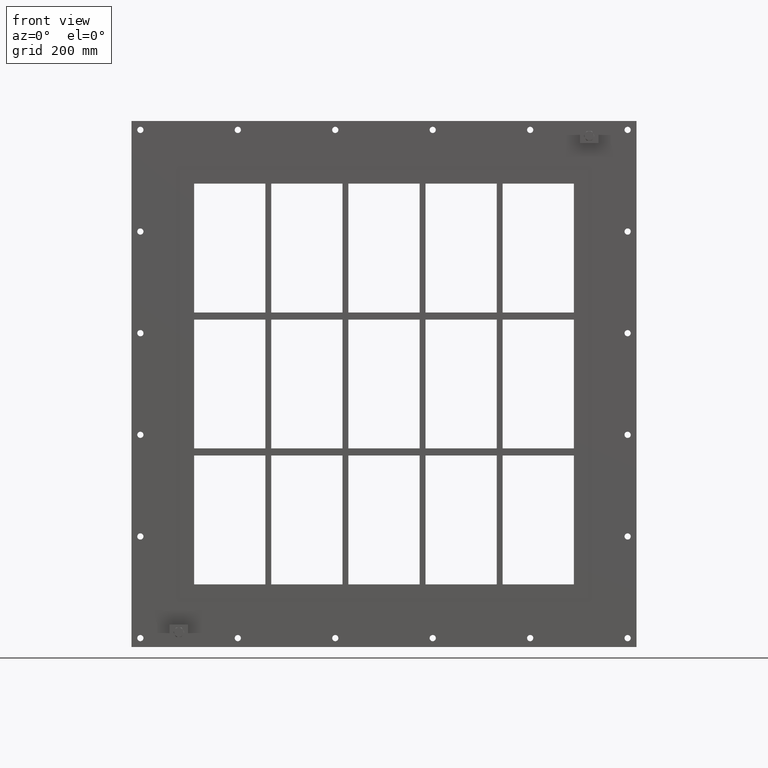
[diagram: clean part render]
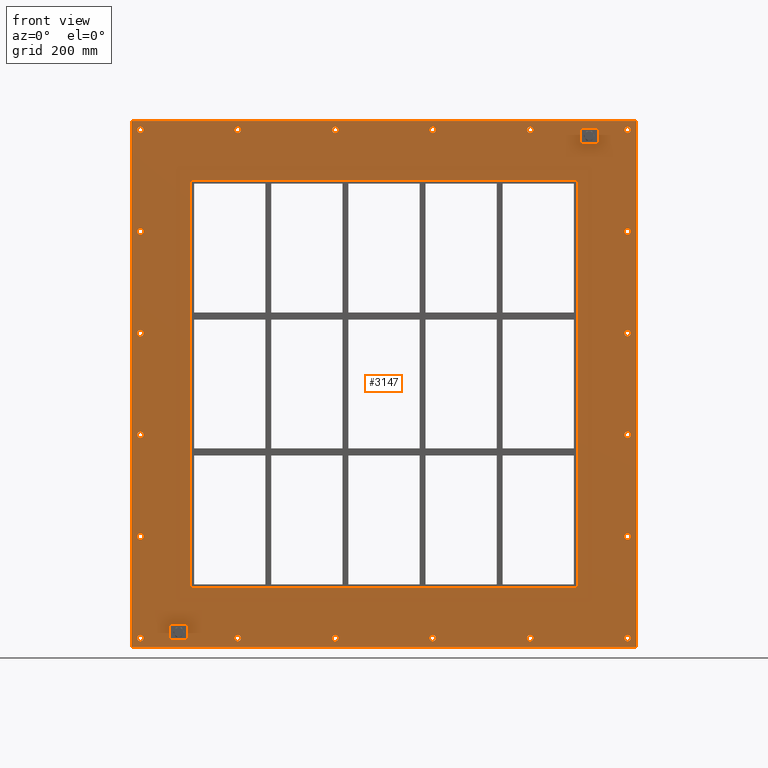
[diagram: same view with one face highlighted and labeled with its STEP entity id]
A machine part, front view. The second image highlights one B-rep face of the part: STEP entity #3147.
In plain terms, the highlighted planar face has unit normal (0, 1, 0).
Its self-contained STEP definition (entity closure, byte-faithful):
#84=CARTESIAN_POINT('',(-407.00000000000017,0.0,-430.0));
#85=VERTEX_POINT('',#84);
#86=CARTESIAN_POINT('',(-412.25000000000017,0.0,-430.0));
#87=DIRECTION('',(0.0,1.0,0.0));
#88=DIRECTION('',(1.0,0.0,0.0));
#89=AXIS2_PLACEMENT_3D('',#86,#87,#88);
#90=CIRCLE('',#89,5.25);
#91=EDGE_CURVE('',#85,#85,#90,.T.);
#112=CARTESIAN_POINT('',(417.5,0.0,-257.99999999999994));
#113=VERTEX_POINT('',#112);
#114=CARTESIAN_POINT('',(412.25,0.0,-257.99999999999994));
#115=DIRECTION('',(0.0,1.0,0.0));
#116=DIRECTION('',(1.0,0.0,0.0));
#117=AXIS2_PLACEMENT_3D('',#114,#115,#116);
#118=CIRCLE('',#117,5.25);
#119=EDGE_CURVE('',#113,#113,#118,.T.);
#140=CARTESIAN_POINT('',(-407.00000000000017,0.0,-257.99999999999994));
#141=VERTEX_POINT('',#140);
#142=CARTESIAN_POINT('',(-412.25000000000017,0.0,-257.99999999999994));
#143=DIRECTION('',(0.0,1.0,0.0));
#144=DIRECTION('',(1.0,0.0,0.0));
#145=AXIS2_PLACEMENT_3D('',#142,#143,#144);
#146=CIRCLE('',#145,5.25);
#147=EDGE_CURVE('',#141,#141,#146,.T.);
#168=CARTESIAN_POINT('',(417.5,0.0,-85.999999999999915));
#169=VERTEX_POINT('',#168);
#170=CARTESIAN_POINT('',(412.25,0.0,-85.999999999999915));
#171=DIRECTION('',(0.0,1.0,0.0));
#172=DIRECTION('',(1.0,0.0,0.0));
#173=AXIS2_PLACEMENT_3D('',#170,#171,#172);
#174=CIRCLE('',#173,5.25);
#175=EDGE_CURVE('',#169,#169,#174,.T.);
#196=CARTESIAN_POINT('',(-407.00000000000017,0.0,-85.999999999999915));
#197=VERTEX_POINT('',#196);
#198=CARTESIAN_POINT('',(-412.25000000000017,0.0,-85.999999999999915));
#199=DIRECTION('',(0.0,1.0,0.0));
#200=DIRECTION('',(1.0,0.0,0.0));
#201=AXIS2_PLACEMENT_3D('',#198,#199,#200);
#202=CIRCLE('',#201,5.25);
#203=EDGE_CURVE('',#197,#197,#202,.T.);
#224=CARTESIAN_POINT('',(417.5,0.0,86.000000000000014));
#225=VERTEX_POINT('',#224);
#226=CARTESIAN_POINT('',(412.25,0.0,86.000000000000014));
#227=DIRECTION('',(0.0,1.0,0.0));
#228=DIRECTION('',(1.0,0.0,0.0));
#229=AXIS2_PLACEMENT_3D('',#226,#227,#228);
#230=CIRCLE('',#229,5.25);
#231=EDGE_CURVE('',#225,#225,#230,.T.);
#252=CARTESIAN_POINT('',(-407.00000000000017,0.0,86.000000000000014));
#253=VERTEX_POINT('',#252);
#254=CARTESIAN_POINT('',(-412.25000000000017,0.0,86.000000000000014));
#255=DIRECTION('',(0.0,1.0,0.0));
#256=DIRECTION('',(1.0,0.0,0.0));
#257=AXIS2_PLACEMENT_3D('',#254,#255,#256);
#258=CIRCLE('',#257,5.25);
#259=EDGE_CURVE('',#253,#253,#258,.T.);
#280=CARTESIAN_POINT('',(417.5,0.0,258.0));
#281=VERTEX_POINT('',#280);
#282=CARTESIAN_POINT('',(412.25,0.0,258.0));
#283=DIRECTION('',(0.0,1.0,0.0));
#284=DIRECTION('',(1.0,0.0,0.0));
#285=AXIS2_PLACEMENT_3D('',#282,#283,#284);
#286=CIRCLE('',#285,5.25);
#287=EDGE_CURVE('',#281,#281,#286,.T.);
#308=CARTESIAN_POINT('',(-407.00000000000017,0.0,258.0));
#309=VERTEX_POINT('',#308);
#310=CARTESIAN_POINT('',(-412.25000000000017,0.0,258.0));
#311=DIRECTION('',(0.0,1.0,0.0));
#312=DIRECTION('',(1.0,0.0,0.0));
#313=AXIS2_PLACEMENT_3D('',#310,#311,#312);
#314=CIRCLE('',#313,5.25);
#315=EDGE_CURVE('',#309,#309,#314,.T.);
#336=CARTESIAN_POINT('',(-242.10000000000008,0.0,430.0));
#337=VERTEX_POINT('',#336);
#338=CARTESIAN_POINT('',(-247.35000000000008,0.0,430.0));
#339=DIRECTION('',(0.0,1.0,0.0));
#340=DIRECTION('',(1.0,0.0,0.0));
#341=AXIS2_PLACEMENT_3D('',#338,#339,#340);
#342=CIRCLE('',#341,5.25);
#343=EDGE_CURVE('',#337,#337,#342,.T.);
#364=CARTESIAN_POINT('',(-242.10000000000008,0.0,-430.0));
#365=VERTEX_POINT('',#364);
#366=CARTESIAN_POINT('',(-247.35000000000008,0.0,-430.0));
#367=DIRECTION('',(0.0,1.0,0.0));
#368=DIRECTION('',(1.0,0.0,0.0));
#369=AXIS2_PLACEMENT_3D('',#366,#367,#368);
#370=CIRCLE('',#369,5.25);
#371=EDGE_CURVE('',#365,#365,#370,.T.);
#392=CARTESIAN_POINT('',(-77.20000000000006,0.0,430.0));
#393=VERTEX_POINT('',#392);
#394=CARTESIAN_POINT('',(-82.450000000000045,0.0,430.0));
#395=DIRECTION('',(0.0,1.0,0.0));
#396=DIRECTION('',(1.0,0.0,0.0));
#397=AXIS2_PLACEMENT_3D('',#394,#395,#396);
#398=CIRCLE('',#397,5.25);
#399=EDGE_CURVE('',#393,#393,#398,.T.);
#420=CARTESIAN_POINT('',(-77.20000000000006,0.0,-430.0));
#421=VERTEX_POINT('',#420);
#422=CARTESIAN_POINT('',(-82.450000000000045,0.0,-430.0));
#423=DIRECTION('',(0.0,1.0,0.0));
#424=DIRECTION('',(1.0,0.0,0.0));
#425=AXIS2_PLACEMENT_3D('',#422,#423,#424);
#426=CIRCLE('',#425,5.25);
#427=EDGE_CURVE('',#421,#421,#426,.T.);
#448=CARTESIAN_POINT('',(87.69999999999996,0.0,430.0));
#449=VERTEX_POINT('',#448);
#450=CARTESIAN_POINT('',(82.449999999999974,0.0,430.0));
#451=DIRECTION('',(0.0,1.0,0.0));
#452=DIRECTION('',(1.0,0.0,0.0));
#453=AXIS2_PLACEMENT_3D('',#450,#451,#452);
#454=CIRCLE('',#453,5.25);
#455=EDGE_CURVE('',#449,#449,#454,.T.);
#476=CARTESIAN_POINT('',(87.69999999999996,0.0,-430.0));
#477=VERTEX_POINT('',#476);
#478=CARTESIAN_POINT('',(82.449999999999974,0.0,-430.0));
#479=DIRECTION('',(0.0,1.0,0.0));
#480=DIRECTION('',(1.0,0.0,0.0));
#481=AXIS2_PLACEMENT_3D('',#478,#479,#480);
#482=CIRCLE('',#481,5.25);
#483=EDGE_CURVE('',#477,#477,#482,.T.);
#504=CARTESIAN_POINT('',(252.59999999999997,0.0,430.0));
#505=VERTEX_POINT('',#504);
#506=CARTESIAN_POINT('',(247.34999999999999,0.0,430.0));
#507=DIRECTION('',(0.0,1.0,0.0));
#508=DIRECTION('',(1.0,0.0,0.0));
#509=AXIS2_PLACEMENT_3D('',#506,#507,#508);
#510=CIRCLE('',#509,5.25);
#511=EDGE_CURVE('',#505,#505,#510,.T.);
#532=CARTESIAN_POINT('',(252.59999999999997,0.0,-430.0));
#533=VERTEX_POINT('',#532);
#534=CARTESIAN_POINT('',(247.34999999999999,0.0,-430.0));
#535=DIRECTION('',(0.0,1.0,0.0));
#536=DIRECTION('',(1.0,0.0,0.0));
#537=AXIS2_PLACEMENT_3D('',#534,#535,#536);
#538=CIRCLE('',#537,5.25);
#539=EDGE_CURVE('',#533,#533,#538,.T.);
#560=CARTESIAN_POINT('',(417.5,0.0,-430.0));
#561=VERTEX_POINT('',#560);
#562=CARTESIAN_POINT('',(412.25,0.0,-430.0));
#563=DIRECTION('',(0.0,1.0,0.0));
#564=DIRECTION('',(1.0,0.0,0.0));
#565=AXIS2_PLACEMENT_3D('',#562,#563,#564);
#566=CIRCLE('',#565,5.25);
#567=EDGE_CURVE('',#561,#561,#566,.T.);
#588=CARTESIAN_POINT('',(-407.00000000000017,0.0,430.0));
#589=VERTEX_POINT('',#588);
#590=CARTESIAN_POINT('',(-412.25000000000017,0.0,430.0));
#591=DIRECTION('',(0.0,1.0,0.0));
#592=DIRECTION('',(1.0,0.0,0.0));
#593=AXIS2_PLACEMENT_3D('',#590,#591,#592);
#594=CIRCLE('',#593,5.25);
#595=EDGE_CURVE('',#589,#589,#594,.T.);
#616=CARTESIAN_POINT('',(417.5,0.0,430.0));
#617=VERTEX_POINT('',#616);
#618=CARTESIAN_POINT('',(412.25,0.0,430.0));
#619=DIRECTION('',(0.0,1.0,0.0));
#620=DIRECTION('',(1.0,0.0,0.0));
#621=AXIS2_PLACEMENT_3D('',#618,#619,#620);
#622=CIRCLE('',#621,5.25);
#623=EDGE_CURVE('',#617,#617,#622,.T.);
#2978=CARTESIAN_POINT('',(0.0,0.0,1.955062E-014));
#2979=DIRECTION('',(0.0,1.0,0.0));
#2980=DIRECTION('',(0.0,0.0,1.0));
#2981=AXIS2_PLACEMENT_3D('',#2978,#2979,#2980);
#2982=PLANE('',#2981);
#2983=CARTESIAN_POINT('',(-427.25,0.0,445.00000000000006));
#2984=VERTEX_POINT('',#2983);
#2985=CARTESIAN_POINT('',(427.25,0.0,445.00000000000006));
#2986=VERTEX_POINT('',#2985);
#2987=CARTESIAN_POINT('',(-427.25,0.0,445.00000000000006));
#2988=DIRECTION('',(1.0,0.0,0.0));
#2989=VECTOR('',#2988,854.5);
#2990=LINE('',#2987,#2989);
#2991=EDGE_CURVE('',#2984,#2986,#2990,.T.);
#2992=ORIENTED_EDGE('',*,*,#2991,.F.);
#2993=CARTESIAN_POINT('',(-427.25,0.0,-445.0));
#2994=VERTEX_POINT('',#2993);
#2995=CARTESIAN_POINT('',(-427.25,0.0,-445.0));
#2996=DIRECTION('',(0.0,0.0,1.0));
#2997=VECTOR('',#2996,890.0);
#2998=LINE('',#2995,#2997);
#2999=EDGE_CURVE('',#2994,#2984,#2998,.T.);
#3000=ORIENTED_EDGE('',*,*,#2999,.F.);
#3001=CARTESIAN_POINT('',(427.25,0.0,-445.0));
#3002=VERTEX_POINT('',#3001);
#3003=CARTESIAN_POINT('',(427.25,0.0,-445.0));
#3004=DIRECTION('',(-1.0,0.0,0.0));
#3005=VECTOR('',#3004,854.5);
#3006=LINE('',#3003,#3005);
#3007=EDGE_CURVE('',#3002,#2994,#3006,.T.);
#3008=ORIENTED_EDGE('',*,*,#3007,.F.);
#3009=CARTESIAN_POINT('',(427.25,0.0,445.00000000000006));
#3010=DIRECTION('',(0.0,0.0,-1.0));
#3011=VECTOR('',#3010,890.0);
#3012=LINE('',#3009,#3011);
#3013=EDGE_CURVE('',#2986,#3002,#3012,.T.);
#3014=ORIENTED_EDGE('',*,*,#3013,.F.);
#3015=EDGE_LOOP('',(#2992,#3000,#3008,#3014));
#3016=FACE_OUTER_BOUND('',#3015,.T.);
#3017=ORIENTED_EDGE('',*,*,#91,.T.);
#3018=EDGE_LOOP('',(#3017));
#3019=FACE_BOUND('',#3018,.T.);
#3020=ORIENTED_EDGE('',*,*,#119,.T.);
#3021=EDGE_LOOP('',(#3020));
#3022=FACE_BOUND('',#3021,.T.);
#3023=ORIENTED_EDGE('',*,*,#147,.T.);
#3024=EDGE_LOOP('',(#3023));
#3025=FACE_BOUND('',#3024,.T.);
#3026=ORIENTED_EDGE('',*,*,#175,.T.);
#3027=EDGE_LOOP('',(#3026));
#3028=FACE_BOUND('',#3027,.T.);
#3029=ORIENTED_EDGE('',*,*,#203,.T.);
#3030=EDGE_LOOP('',(#3029));
#3031=FACE_BOUND('',#3030,.T.);
#3032=ORIENTED_EDGE('',*,*,#231,.T.);
#3033=EDGE_LOOP('',(#3032));
#3034=FACE_BOUND('',#3033,.T.);
#3035=ORIENTED_EDGE('',*,*,#259,.T.);
#3036=EDGE_LOOP('',(#3035));
#3037=FACE_BOUND('',#3036,.T.);
#3038=ORIENTED_EDGE('',*,*,#287,.T.);
#3039=EDGE_LOOP('',(#3038));
#3040=FACE_BOUND('',#3039,.T.);
#3041=ORIENTED_EDGE('',*,*,#315,.T.);
#3042=EDGE_LOOP('',(#3041));
#3043=FACE_BOUND('',#3042,.T.);
#3044=ORIENTED_EDGE('',*,*,#343,.T.);
#3045=EDGE_LOOP('',(#3044));
#3046=FACE_BOUND('',#3045,.T.);
#3047=ORIENTED_EDGE('',*,*,#371,.T.);
#3048=EDGE_LOOP('',(#3047));
#3049=FACE_BOUND('',#3048,.T.);
#3050=ORIENTED_EDGE('',*,*,#399,.T.);
#3051=EDGE_LOOP('',(#3050));
#3052=FACE_BOUND('',#3051,.T.);
#3053=ORIENTED_EDGE('',*,*,#427,.T.);
#3054=EDGE_LOOP('',(#3053));
#3055=FACE_BOUND('',#3054,.T.);
#3056=ORIENTED_EDGE('',*,*,#455,.T.);
#3057=EDGE_LOOP('',(#3056));
#3058=FACE_BOUND('',#3057,.T.);
#3059=ORIENTED_EDGE('',*,*,#483,.T.);
#3060=EDGE_LOOP('',(#3059));
#3061=FACE_BOUND('',#3060,.T.);
#3062=ORIENTED_EDGE('',*,*,#511,.T.);
#3063=EDGE_LOOP('',(#3062));
#3064=FACE_BOUND('',#3063,.T.);
#3065=ORIENTED_EDGE('',*,*,#539,.T.);
#3066=EDGE_LOOP('',(#3065));
#3067=FACE_BOUND('',#3066,.T.);
#3068=ORIENTED_EDGE('',*,*,#567,.T.);
#3069=EDGE_LOOP('',(#3068));
#3070=FACE_BOUND('',#3069,.T.);
#3071=ORIENTED_EDGE('',*,*,#595,.T.);
#3072=EDGE_LOOP('',(#3071));
#3073=FACE_BOUND('',#3072,.T.);
#3074=ORIENTED_EDGE('',*,*,#623,.T.);
#3075=EDGE_LOOP('',(#3074));
#3076=FACE_BOUND('',#3075,.T.);
#3077=CARTESIAN_POINT('',(-321.25,0.0,345.00000000000006));
#3078=VERTEX_POINT('',#3077);
#3079=CARTESIAN_POINT('',(-327.25,0.0,339.00000000000006));
#3080=VERTEX_POINT('',#3079);
#3081=CARTESIAN_POINT('',(-321.25,0.0,339.00000000000006));
#3082=DIRECTION('',(0.0,-1.0,0.0));
#3083=DIRECTION('',(-0.707106781186548,0.0,0.707106781186548));
#3084=AXIS2_PLACEMENT_3D('',#3081,#3082,#3083);
#3085=CIRCLE('',#3084,6.000000000000002);
#3086=EDGE_CURVE('',#3078,#3080,#3085,.T.);
#3087=ORIENTED_EDGE('',*,*,#3086,.F.);
#3088=CARTESIAN_POINT('',(321.25,0.0,345.00000000000006));
#3089=VERTEX_POINT('',#3088);
#3090=CARTESIAN_POINT('',(321.25,0.0,345.00000000000006));
#3091=DIRECTION('',(-1.0,0.0,0.0));
#3092=VECTOR('',#3091,642.5);
#3093=LINE('',#3090,#3092);
#3094=EDGE_CURVE('',#3089,#3078,#3093,.T.);
#3095=ORIENTED_EDGE('',*,*,#3094,.F.);
#3096=CARTESIAN_POINT('',(327.25,0.0,339.00000000000006));
#3097=VERTEX_POINT('',#3096);
#3098=CARTESIAN_POINT('',(321.25,0.0,339.00000000000006));
#3099=DIRECTION('',(0.0,-1.0,0.0));
#3100=DIRECTION('',(0.707106781186548,0.0,0.707106781186548));
#3101=AXIS2_PLACEMENT_3D('',#3098,#3099,#3100);
#3102=CIRCLE('',#3101,6.000000000000002);
#3103=EDGE_CURVE('',#3097,#3089,#3102,.T.);
#3104=ORIENTED_EDGE('',*,*,#3103,.F.);
#3105=CARTESIAN_POINT('',(327.25,0.0,-339.00000000000006));
#3106=VERTEX_POINT('',#3105);
#3107=CARTESIAN_POINT('',(327.25,0.0,-339.0));
#3108=DIRECTION('',(0.0,0.0,1.0));
#3109=VECTOR('',#3108,678.0);
#3110=LINE('',#3107,#3109);
#3111=EDGE_CURVE('',#3106,#3097,#3110,.T.);
#3112=ORIENTED_EDGE('',*,*,#3111,.F.);
#3113=CARTESIAN_POINT('',(321.25,0.0,-345.00000000000006));
#3114=VERTEX_POINT('',#3113);
#3115=CARTESIAN_POINT('',(321.25,0.0,-339.00000000000006));
#3116=DIRECTION('',(0.0,-1.0,0.0));
#3117=DIRECTION('',(0.707106781186548,0.0,-0.707106781186548));
#3118=AXIS2_PLACEMENT_3D('',#3115,#3116,#3117);
#3119=CIRCLE('',#3118,6.000000000000002);
#3120=EDGE_CURVE('',#3114,#3106,#3119,.T.);
#3121=ORIENTED_EDGE('',*,*,#3120,.F.);
#3122=CARTESIAN_POINT('',(-321.25,0.0,-345.00000000000006));
#3123=VERTEX_POINT('',#3122);
#3124=CARTESIAN_POINT('',(-321.25,0.0,-345.00000000000006));
#3125=DIRECTION('',(1.0,0.0,0.0));
#3126=VECTOR('',#3125,642.5);
#3127=LINE('',#3124,#3126);
#3128=EDGE_CURVE('',#3123,#3114,#3127,.T.);
#3129=ORIENTED_EDGE('',*,*,#3128,.F.);
#3130=CARTESIAN_POINT('',(-327.25,0.0,-339.00000000000006));
#3131=VERTEX_POINT('',#3130);
#3132=CARTESIAN_POINT('',(-321.25,0.0,-339.00000000000006));
#3133=DIRECTION('',(0.0,-1.0,0.0));
#3134=DIRECTION('',(-0.707106781186548,0.0,-0.707106781186548));
#3135=AXIS2_PLACEMENT_3D('',#3132,#3133,#3134);
#3136=CIRCLE('',#3135,6.000000000000002);
#3137=EDGE_CURVE('',#3131,#3123,#3136,.T.);
#3138=ORIENTED_EDGE('',*,*,#3137,.F.);
#3139=CARTESIAN_POINT('',(-327.25,0.0,339.0));
#3140=DIRECTION('',(0.0,0.0,-1.0));
#3141=VECTOR('',#3140,678.0);
#3142=LINE('',#3139,#3141);
#3143=EDGE_CURVE('',#3080,#3131,#3142,.T.);
#3144=ORIENTED_EDGE('',*,*,#3143,.F.);
#3145=EDGE_LOOP('',(#3087,#3095,#3104,#3112,#3121,#3129,#3138,#3144));
#3146=FACE_BOUND('',#3145,.T.);
#3147=ADVANCED_FACE('',(#3016,#3019,#3022,#3025,#3028,#3031,#3034,#3037,#3040,#3043,#3046,#3049,#3052,#3055,#3058,#3061,#3064,#3067,#3070,#3073,#3076,#3146),#2982,.F.);